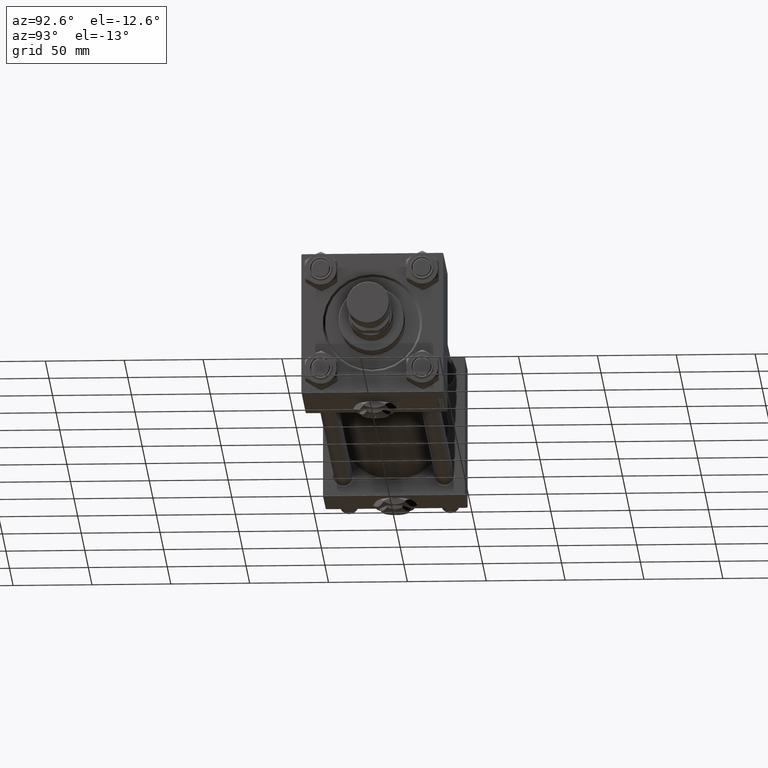
[diagram: clean part render]
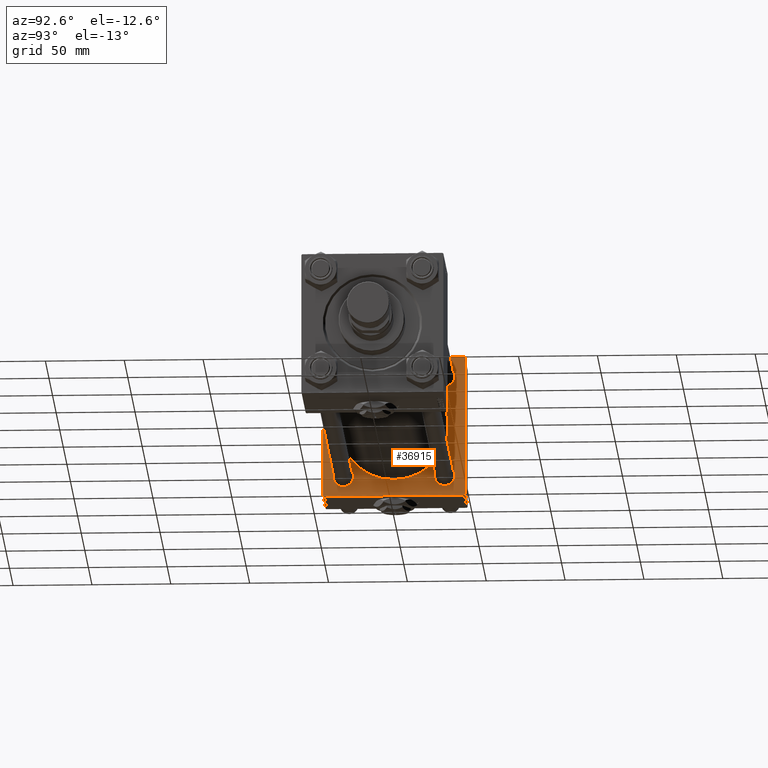
[diagram: same view with one face highlighted and labeled with its STEP entity id]
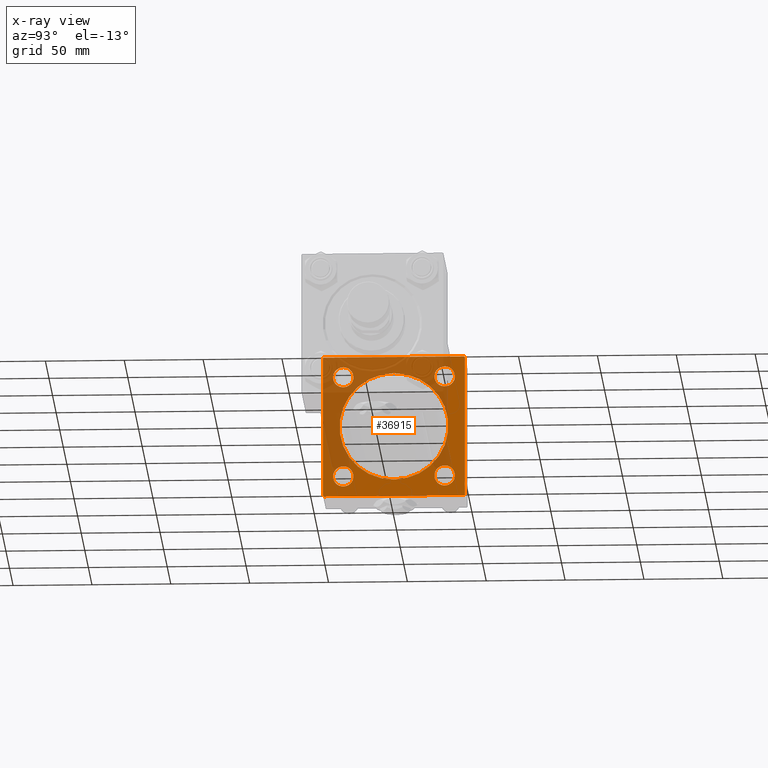
[diagram: x-ray of the same camera — body ghosted, the highlighted face saturated]
A machine part, auxiliary view. The second image highlights one B-rep face of the part: STEP entity #36915.
The next image is the same camera in x-ray: the body ghosted, the highlighted face saturated — about 49% of this face is hidden behind the body in this view.
In plain terms, the highlighted planar face has unit normal (-1, 0, 0).
Its self-contained STEP definition (entity closure, byte-faithful):
#533 = FACE_OUTER_BOUND ( 'NONE', #23300, .T. ) ;
#922 = CARTESIAN_POINT ( 'NONE',  ( 37.00000000000000000, 32.14999999999999147, 32.15000000000000568 ) ) ;
#1523 = CIRCLE ( 'NONE', #30279, 34.49999999999999289 ) ;
#1828 = CARTESIAN_POINT ( 'NONE',  ( 37.00000000000000000, -45.00000000000000711, 44.49999999999997158 ) ) ;
#2089 = LINE ( 'NONE', #1828, #7864 ) ;
#2691 = EDGE_CURVE ( 'NONE', #50743, #27900, #17747, .T. ) ;
#2981 = DIRECTION ( 'NONE',  ( 0.000000000000000000, 0.000000000000000000, 1.000000000000000000 ) ) ;
#3011 = CARTESIAN_POINT ( 'NONE',  ( 37.00000000000000000, 32.14999999999999147, 32.15000000000000568 ) ) ;
#3020 = AXIS2_PLACEMENT_3D ( 'NONE', #7736, #28383, #2981 ) ;
#3500 = CARTESIAN_POINT ( 'NONE',  ( 37.00000000000000000, 44.49999999999998579, 45.00000000000001421 ) ) ;
#3737 = DIRECTION ( 'NONE',  ( 0.000000000000000000, 0.000000000000000000, -1.000000000000000000 ) ) ;
#3933 = DIRECTION ( 'NONE',  ( 0.000000000000000000, 0.000000000000000000, 1.000000000000000000 ) ) ;
#4206 = CARTESIAN_POINT ( 'NONE',  ( 37.00000000000000000, -32.14999999999997726, 38.64999999999999147 ) ) ;
#4323 = CARTESIAN_POINT ( 'NONE',  ( 37.00000000000000000, -32.14999999999997726, 25.65000000000003411 ) ) ;
#5390 = ORIENTED_EDGE ( 'NONE', *, *, #38720, .F. ) ;
#6021 = VECTOR ( 'NONE', #27164, 1000.000000000000000 ) ;
#6204 = CARTESIAN_POINT ( 'NONE',  ( 37.00000000000000000, -32.14999999999997726, -32.15000000000001279 ) ) ;
#6473 = DIRECTION ( 'NONE',  ( 0.000000000000000000, 0.000000000000000000, 1.000000000000000000 ) ) ;
#6832 = EDGE_CURVE ( 'NONE', #44842, #50743, #19474, .T. ) ;
#7497 = VERTEX_POINT ( 'NONE', #14583 ) ;
#7571 = ORIENTED_EDGE ( 'NONE', *, *, #38991, .T. ) ;
#7736 = CARTESIAN_POINT ( 'NONE',  ( 37.00000000000000000, 32.14999999999999147, -32.15000000000000568 ) ) ;
#7850 = CARTESIAN_POINT ( 'NONE',  ( 37.00000000000000711, 0.000000000000000000, 0.000000000000000000 ) ) ;
#7864 = VECTOR ( 'NONE', #25400, 1000.000000000000114 ) ;
#8848 = ORIENTED_EDGE ( 'NONE', *, *, #37822, .T. ) ;
#9163 = VERTEX_POINT ( 'NONE', #23893 ) ;
#9489 = DIRECTION ( 'NONE',  ( -1.000000000000000000, 0.000000000000000000, -0.000000000000000000 ) ) ;
#9646 = CARTESIAN_POINT ( 'NONE',  ( 37.00000000000000000, 44.99999999999998579, -44.49999999999995737 ) ) ;
#9650 = CARTESIAN_POINT ( 'NONE',  ( 37.00000000000000000, -45.00000000000000000, -44.49999999999995737 ) ) ;
#9796 = DIRECTION ( 'NONE',  ( -0.000000000000000000, 0.7071067811865474617, 0.7071067811865474617 ) ) ;
#9825 = LINE ( 'NONE', #25207, #30663 ) ;
#9863 = ORIENTED_EDGE ( 'NONE', *, *, #2691, .T. ) ;
#9895 = CIRCLE ( 'NONE', #20871, 34.49999999999999289 ) ;
#9955 = EDGE_CURVE ( 'NONE', #27753, #34154, #10347, .T. ) ;
#10214 = EDGE_CURVE ( 'NONE', #36926, #27900, #9825, .T. ) ;
#10285 = EDGE_LOOP ( 'NONE', ( #46991, #12226 ) ) ;
#10347 = CIRCLE ( 'NONE', #35715, 6.499999999999977796 ) ;
#11618 = CARTESIAN_POINT ( 'NONE',  ( 37.00000000000000000, 44.49999999999998579, 45.00000000000001421 ) ) ;
#11773 = CARTESIAN_POINT ( 'NONE',  ( 37.00000000000000000, -32.14999999999997726, -32.15000000000001279 ) ) ;
#12226 = ORIENTED_EDGE ( 'NONE', *, *, #26243, .F. ) ;
#12379 = ORIENTED_EDGE ( 'NONE', *, *, #30728, .T. ) ;
#12560 = DIRECTION ( 'NONE',  ( -1.000000000000000000, 0.000000000000000000, -0.000000000000000000 ) ) ;
#12788 = EDGE_LOOP ( 'NONE', ( #49328, #15778 ) ) ;
#14454 = CARTESIAN_POINT ( 'NONE',  ( 37.00000000000000000, 32.14999999999999147, 38.64999999999998437 ) ) ;
#14583 = CARTESIAN_POINT ( 'NONE',  ( 37.00000000000000711, 4.225031457058367344E-15, -34.49999999999999289 ) ) ;
#14799 = CIRCLE ( 'NONE', #24111, 6.499999999999977796 ) ;
#15574 = VERTEX_POINT ( 'NONE', #9646 ) ;
#15778 = ORIENTED_EDGE ( 'NONE', *, *, #50324, .T. ) ;
#16161 = VERTEX_POINT ( 'NONE', #30892 ) ;
#16662 = PLANE ( 'NONE',  #18717 ) ;
#17400 = CIRCLE ( 'NONE', #3020, 6.499999999999977796 ) ;
#17437 = FACE_BOUND ( 'NONE', #39711, .T. ) ;
#17734 = LINE ( 'NONE', #22488, #29292 ) ;
#17747 = LINE ( 'NONE', #30721, #44405 ) ;
#18050 = VERTEX_POINT ( 'NONE', #4323 ) ;
#18717 = AXIS2_PLACEMENT_3D ( 'NONE', #32824, #9489, #25635 ) ;
#19170 = CARTESIAN_POINT ( 'NONE',  ( 37.00000000000000000, 32.14999999999999147, -25.65000000000002700 ) ) ;
#19396 = DIRECTION ( 'NONE',  ( 0.000000000000000000, 0.000000000000000000, 1.000000000000000000 ) ) ;
#19465 = ORIENTED_EDGE ( 'NONE', *, *, #50558, .T. ) ;
#19474 = LINE ( 'NONE', #51752, #6021 ) ;
#19579 = CARTESIAN_POINT ( 'NONE',  ( 37.00000000000000000, -32.14999999999997726, 32.15000000000001279 ) ) ;
#19609 = DIRECTION ( 'NONE',  ( -1.000000000000000000, 0.000000000000000000, -0.000000000000000000 ) ) ;
#19701 = EDGE_LOOP ( 'NONE', ( #48357, #43559 ) ) ;
#19769 = EDGE_CURVE ( 'NONE', #16161, #9163, #14799, .T. ) ;
#19795 = CARTESIAN_POINT ( 'NONE',  ( 37.00000000000000000, 32.14999999999999147, 25.65000000000002700 ) ) ;
#20052 = CARTESIAN_POINT ( 'NONE',  ( 37.00000000000000000, -32.14999999999997726, 32.15000000000001279 ) ) ;
#20871 = AXIS2_PLACEMENT_3D ( 'NONE', #7850, #28230, #44630 ) ;
#20974 = DIRECTION ( 'NONE',  ( 0.000000000000000000, -1.000000000000000000, -1.541976423090495633E-16 ) ) ;
#21684 = CARTESIAN_POINT ( 'NONE',  ( 37.00000000000000711, 0.000000000000000000, 34.49999999999999289 ) ) ;
#22488 = CARTESIAN_POINT ( 'NONE',  ( 37.00000000000000000, 44.99999999999998579, -44.49999999999998579 ) ) ;
#22629 = VERTEX_POINT ( 'NONE', #21684 ) ;
#23030 = LINE ( 'NONE', #34937, #50889 ) ;
#23300 = EDGE_LOOP ( 'NONE', ( #38967, #19465, #5390, #48105, #8848, #7571, #51295, #9863 ) ) ;
#23756 = VERTEX_POINT ( 'NONE', #42577 ) ;
#23893 = CARTESIAN_POINT ( 'NONE',  ( 37.00000000000000000, -32.14999999999997726, -38.64999999999999147 ) ) ;
#23903 = DIRECTION ( 'NONE',  ( 0.000000000000000000, 0.000000000000000000, 1.000000000000000000 ) ) ;
#23912 = CIRCLE ( 'NONE', #51777, 6.499999999999977796 ) ;
#24111 = AXIS2_PLACEMENT_3D ( 'NONE', #11773, #36371, #36120 ) ;
#24224 = EDGE_CURVE ( 'NONE', #22629, #7497, #9895, .T. ) ;
#24282 = CARTESIAN_POINT ( 'NONE',  ( 37.00000000000000000, 44.99999999999998579, 44.50000000000001421 ) ) ;
#24313 = LINE ( 'NONE', #11618, #46144 ) ;
#24626 = AXIS2_PLACEMENT_3D ( 'NONE', #922, #12560, #45363 ) ;
#25090 = CARTESIAN_POINT ( 'NONE',  ( 37.00000000000000000, -44.49999999999995737, -45.00000000000000000 ) ) ;
#25207 = CARTESIAN_POINT ( 'NONE',  ( 37.00000000000000000, 44.99999999999998579, -44.99999999999998579 ) ) ;
#25383 = FACE_BOUND ( 'NONE', #12788, .T. ) ;
#25400 = DIRECTION ( 'NONE',  ( -0.000000000000000000, -0.7071067811865425767, -0.7071067811865524577 ) ) ;
#25508 = VERTEX_POINT ( 'NONE', #24282 ) ;
#25635 = DIRECTION ( 'NONE',  ( -0.000000000000000000, 0.000000000000000000, 1.000000000000000000 ) ) ;
#26211 = CIRCLE ( 'NONE', #43986, 6.499999999999977796 ) ;
#26243 = EDGE_CURVE ( 'NONE', #7497, #22629, #1523, .T. ) ;
#26297 = EDGE_CURVE ( 'NONE', #18050, #28726, #26875, .T. ) ;
#26473 = DIRECTION ( 'NONE',  ( 0.000000000000000000, 0.7071067811865474617, -0.7071067811865474617 ) ) ;
#26875 = CIRCLE ( 'NONE', #28588, 6.499999999999977796 ) ;
#27164 = DIRECTION ( 'NONE',  ( 0.000000000000000000, 7.709882115452476934E-17, -1.000000000000000000 ) ) ;
#27231 = ORIENTED_EDGE ( 'NONE', *, *, #19769, .T. ) ;
#27283 = CARTESIAN_POINT ( 'NONE',  ( 37.00000000000000000, 44.99999999999998579, 45.00000000000001421 ) ) ;
#27421 = ORIENTED_EDGE ( 'NONE', *, *, #35826, .T. ) ;
#27472 = DIRECTION ( 'NONE',  ( -1.000000000000000000, 0.000000000000000000, -0.000000000000000000 ) ) ;
#27753 = VERTEX_POINT ( 'NONE', #37477 ) ;
#27900 = VERTEX_POINT ( 'NONE', #25090 ) ;
#27982 = VERTEX_POINT ( 'NONE', #14454 ) ;
#28230 = DIRECTION ( 'NONE',  ( 1.000000000000000000, -0.000000000000000000, 0.000000000000000000 ) ) ;
#28383 = DIRECTION ( 'NONE',  ( -1.000000000000000000, 0.000000000000000000, -0.000000000000000000 ) ) ;
#28588 = AXIS2_PLACEMENT_3D ( 'NONE', #20052, #27472, #3933 ) ;
#28726 = VERTEX_POINT ( 'NONE', #4206 ) ;
#29292 = VECTOR ( 'NONE', #9796, 1000.000000000000114 ) ;
#29622 = FACE_BOUND ( 'NONE', #41539, .T. ) ;
#30279 = AXIS2_PLACEMENT_3D ( 'NONE', #51271, #46267, #42817 ) ;
#30600 = VERTEX_POINT ( 'NONE', #19795 ) ;
#30663 = VECTOR ( 'NONE', #20974, 1000.000000000000000 ) ;
#30721 = CARTESIAN_POINT ( 'NONE',  ( 37.00000000000000000, -44.49999999999998579, -45.00000000000000000 ) ) ;
#30728 = EDGE_CURVE ( 'NONE', #9163, #16161, #26211, .T. ) ;
#30892 = CARTESIAN_POINT ( 'NONE',  ( 37.00000000000000000, -32.14999999999997726, -25.65000000000003411 ) ) ;
#31240 = DIRECTION ( 'NONE',  ( 0.000000000000000000, 0.000000000000000000, 1.000000000000000000 ) ) ;
#32015 = DIRECTION ( 'NONE',  ( 0.000000000000000000, -0.7071067811865474617, 0.7071067811865474617 ) ) ;
#32251 = AXIS2_PLACEMENT_3D ( 'NONE', #19579, #35202, #31240 ) ;
#32824 = CARTESIAN_POINT ( 'NONE',  ( 37.00000000000000000, 0.000000000000000000, 0.000000000000000000 ) ) ;
#33593 = FACE_BOUND ( 'NONE', #19701, .T. ) ;
#34027 = VECTOR ( 'NONE', #3737, 1000.000000000000000 ) ;
#34154 = VERTEX_POINT ( 'NONE', #19170 ) ;
#34937 = CARTESIAN_POINT ( 'NONE',  ( 37.00000000000000000, 44.99999999999998579, 45.00000000000001421 ) ) ;
#35202 = DIRECTION ( 'NONE',  ( -1.000000000000000000, 0.000000000000000000, -0.000000000000000000 ) ) ;
#35209 = DIRECTION ( 'NONE',  ( 0.000000000000000000, -1.000000000000000000, -1.541976423090495387E-16 ) ) ;
#35473 = EDGE_CURVE ( 'NONE', #30600, #27982, #47434, .T. ) ;
#35715 = AXIS2_PLACEMENT_3D ( 'NONE', #39785, #43482, #19396 ) ;
#35826 = EDGE_CURVE ( 'NONE', #28726, #18050, #39856, .T. ) ;
#36120 = DIRECTION ( 'NONE',  ( 0.000000000000000000, 0.000000000000000000, 1.000000000000000000 ) ) ;
#36325 = VERTEX_POINT ( 'NONE', #3500 ) ;
#36371 = DIRECTION ( 'NONE',  ( -1.000000000000000000, 0.000000000000000000, -0.000000000000000000 ) ) ;
#36915 = ADVANCED_FACE ( 'NONE', ( #29622, #25383, #17437, #33593, #45740, #533 ), #16662, .F. ) ;
#36926 = VERTEX_POINT ( 'NONE', #48938 ) ;
#37477 = CARTESIAN_POINT ( 'NONE',  ( 37.00000000000000000, 32.14999999999999147, -38.64999999999998437 ) ) ;
#37822 = EDGE_CURVE ( 'NONE', #36325, #23756, #23030, .T. ) ;
#38374 = EDGE_CURVE ( 'NONE', #27982, #30600, #23912, .T. ) ;
#38720 = EDGE_CURVE ( 'NONE', #25508, #15574, #51347, .T. ) ;
#38967 = ORIENTED_EDGE ( 'NONE', *, *, #10214, .F. ) ;
#38991 = EDGE_CURVE ( 'NONE', #23756, #44842, #2089, .T. ) ;
#39711 = EDGE_LOOP ( 'NONE', ( #46782, #27421 ) ) ;
#39785 = CARTESIAN_POINT ( 'NONE',  ( 37.00000000000000000, 32.14999999999999147, -32.15000000000000568 ) ) ;
#39856 = CIRCLE ( 'NONE', #32251, 6.499999999999977796 ) ;
#41539 = EDGE_LOOP ( 'NONE', ( #12379, #27231 ) ) ;
#42095 = CARTESIAN_POINT ( 'NONE',  ( 37.00000000000000000, -45.00000000000000711, 44.49999999999997158 ) ) ;
#42577 = CARTESIAN_POINT ( 'NONE',  ( 37.00000000000000000, -44.49999999999995737, 45.00000000000000000 ) ) ;
#42817 = DIRECTION ( 'NONE',  ( 0.000000000000000000, 0.000000000000000000, 1.000000000000000000 ) ) ;
#43482 = DIRECTION ( 'NONE',  ( -1.000000000000000000, 0.000000000000000000, -0.000000000000000000 ) ) ;
#43559 = ORIENTED_EDGE ( 'NONE', *, *, #38374, .T. ) ;
#43986 = AXIS2_PLACEMENT_3D ( 'NONE', #6204, #19609, #6473 ) ;
#44405 = VECTOR ( 'NONE', #26473, 1000.000000000000114 ) ;
#44630 = DIRECTION ( 'NONE',  ( 0.000000000000000000, 0.000000000000000000, 1.000000000000000000 ) ) ;
#44842 = VERTEX_POINT ( 'NONE', #42095 ) ;
#45363 = DIRECTION ( 'NONE',  ( 0.000000000000000000, 0.000000000000000000, 1.000000000000000000 ) ) ;
#45740 = FACE_BOUND ( 'NONE', #10285, .T. ) ;
#46144 = VECTOR ( 'NONE', #32015, 1000.000000000000114 ) ;
#46267 = DIRECTION ( 'NONE',  ( 1.000000000000000000, -0.000000000000000000, 0.000000000000000000 ) ) ;
#46699 = EDGE_CURVE ( 'NONE', #25508, #36325, #24313, .T. ) ;
#46782 = ORIENTED_EDGE ( 'NONE', *, *, #26297, .T. ) ;
#46991 = ORIENTED_EDGE ( 'NONE', *, *, #24224, .F. ) ;
#47187 = DIRECTION ( 'NONE',  ( -1.000000000000000000, 0.000000000000000000, -0.000000000000000000 ) ) ;
#47434 = CIRCLE ( 'NONE', #24626, 6.499999999999977796 ) ;
#48105 = ORIENTED_EDGE ( 'NONE', *, *, #46699, .T. ) ;
#48357 = ORIENTED_EDGE ( 'NONE', *, *, #35473, .T. ) ;
#48938 = CARTESIAN_POINT ( 'NONE',  ( 37.00000000000000000, 44.49999999999998579, -44.99999999999998579 ) ) ;
#49328 = ORIENTED_EDGE ( 'NONE', *, *, #9955, .T. ) ;
#50324 = EDGE_CURVE ( 'NONE', #34154, #27753, #17400, .T. ) ;
#50558 = EDGE_CURVE ( 'NONE', #36926, #15574, #17734, .T. ) ;
#50743 = VERTEX_POINT ( 'NONE', #9650 ) ;
#50889 = VECTOR ( 'NONE', #35209, 1000.000000000000000 ) ;
#51271 = CARTESIAN_POINT ( 'NONE',  ( 37.00000000000000711, 0.000000000000000000, 0.000000000000000000 ) ) ;
#51295 = ORIENTED_EDGE ( 'NONE', *, *, #6832, .T. ) ;
#51347 = LINE ( 'NONE', #27283, #34027 ) ;
#51752 = CARTESIAN_POINT ( 'NONE',  ( 37.00000000000000000, -45.00000000000000711, 45.00000000000000000 ) ) ;
#51777 = AXIS2_PLACEMENT_3D ( 'NONE', #3011, #47187, #23903 ) ;